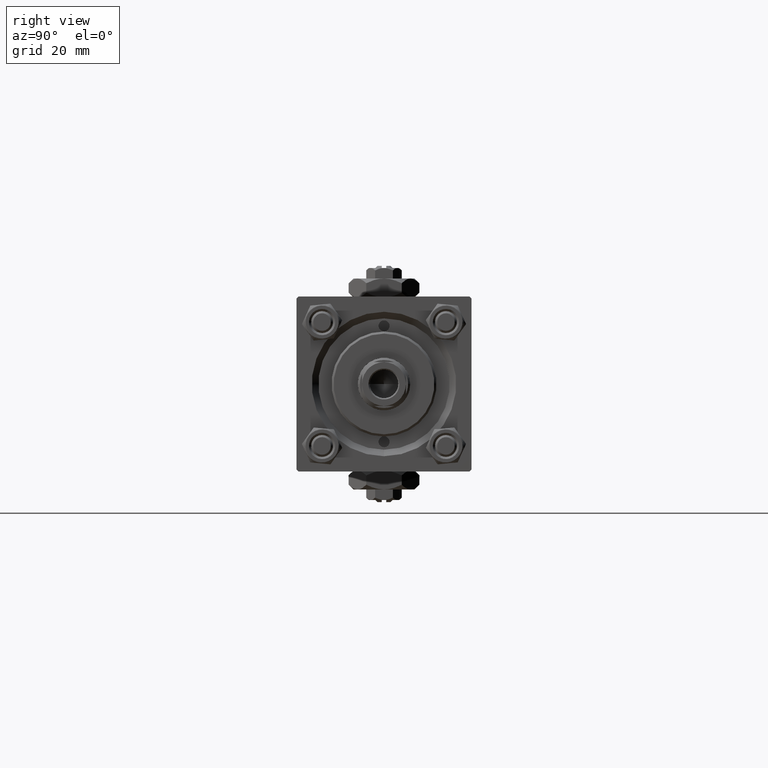
[diagram: clean part render]
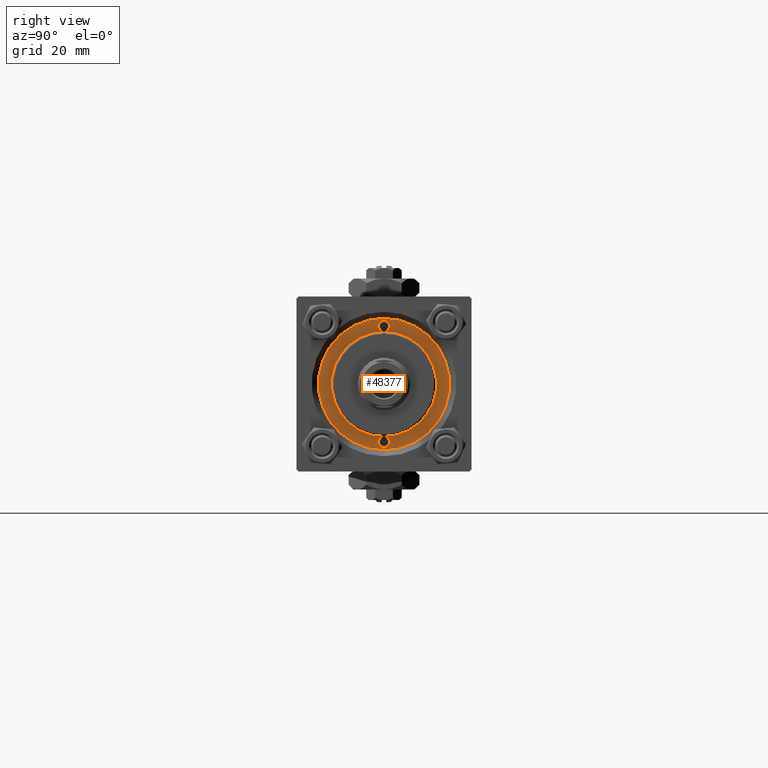
[diagram: same view with one face highlighted and labeled with its STEP entity id]
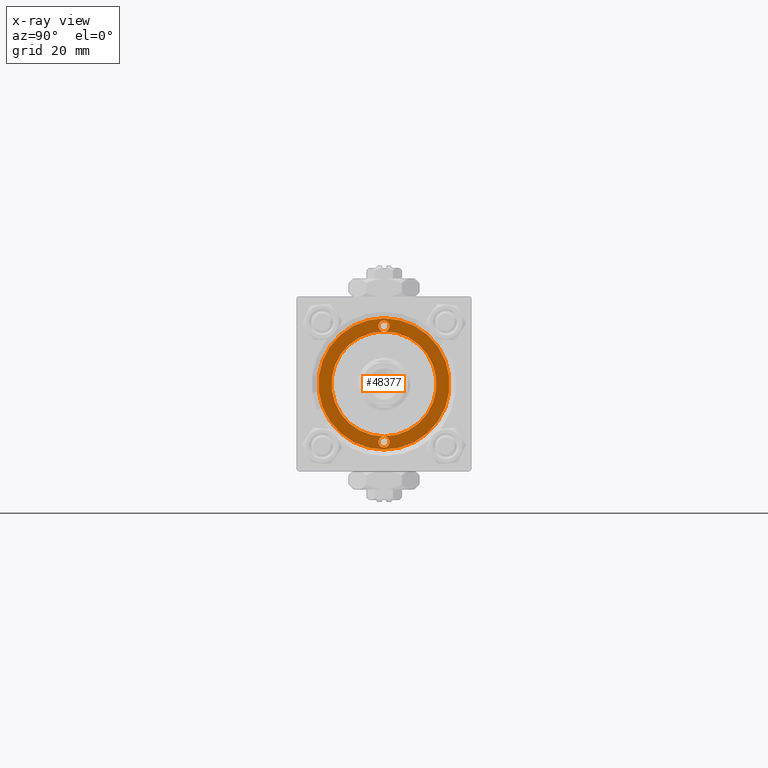
[diagram: x-ray of the same camera — body ghosted, the highlighted face saturated]
A machine part, right view. The second image highlights one B-rep face of the part: STEP entity #48377.
The next image is the same camera in x-ray: the body ghosted, the highlighted face saturated — about 0% of this face is hidden behind the body in this view.
In plain terms, the highlighted planar face has unit normal (1, 0, -0).
Its self-contained STEP definition (entity closure, byte-faithful):
#761 = CARTESIAN_POINT ( 'NONE',  ( 0.000000000000000000, 0.000000000000000000, 28.69999999999999929 ) ) ;
#1569 = ORIENTED_EDGE ( 'NONE', *, *, #18718, .F. ) ;
#3437 = VERTEX_POINT ( 'NONE', #51335 ) ;
#5956 = CARTESIAN_POINT ( 'NONE',  ( -13.25000000000000178, 0.000000000000000000, 28.69999999999999929 ) ) ;
#6027 = VERTEX_POINT ( 'NONE', #37510 ) ;
#6113 = CIRCLE ( 'NONE', #26262, 1.249999999999997558 ) ;
#6301 = DIRECTION ( 'NONE',  ( 0.000000000000000000, 0.000000000000000000, 1.000000000000000000 ) ) ;
#12339 = DIRECTION ( 'NONE',  ( 0.000000000000000000, 0.000000000000000000, 1.000000000000000000 ) ) ;
#13992 = DIRECTION ( 'NONE',  ( 1.000000000000000000, 0.000000000000000000, 0.000000000000000000 ) ) ;
#14981 = FACE_OUTER_BOUND ( 'NONE', #46821, .T. ) ;
#16560 = CIRCLE ( 'NONE', #19061, 1.249999999999999334 ) ;
#16794 = VERTEX_POINT ( 'NONE', #49784 ) ;
#16809 = DIRECTION ( 'NONE',  ( 0.000000000000000000, 0.000000000000000000, 1.000000000000000000 ) ) ;
#17015 = EDGE_CURVE ( 'NONE', #16794, #48087, #18230, .T. ) ;
#17389 = AXIS2_PLACEMENT_3D ( 'NONE', #28612, #12339, #39894 ) ;
#17925 = CARTESIAN_POINT ( 'NONE',  ( -13.25000000000000178, 0.000000000000000000, 28.69999999999999929 ) ) ;
#18230 = CIRCLE ( 'NONE', #21574, 15.00000000000000000 ) ;
#18718 = EDGE_CURVE ( 'NONE', #40108, #39659, #27726, .T. ) ;
#19061 = AXIS2_PLACEMENT_3D ( 'NONE', #43825, #24659, #32281 ) ;
#21143 = CARTESIAN_POINT ( 'NONE',  ( 0.000000000000000000, 0.000000000000000000, 28.69999999999999929 ) ) ;
#21290 = ORIENTED_EDGE ( 'NONE', *, *, #24127, .F. ) ;
#21439 = AXIS2_PLACEMENT_3D ( 'NONE', #761, #16809, #48833 ) ;
#21574 = AXIS2_PLACEMENT_3D ( 'NONE', #30220, #6301, #30734 ) ;
#24127 = EDGE_CURVE ( 'NONE', #39659, #6027, #25410, .T. ) ;
#24659 = DIRECTION ( 'NONE',  ( 0.000000000000000000, 0.000000000000000000, 1.000000000000000000 ) ) ;
#25410 = CIRCLE ( 'NONE', #50529, 1.249999999999999334 ) ;
#25603 = EDGE_CURVE ( 'NONE', #3437, #40108, #6113, .T. ) ;
#25652 = CIRCLE ( 'NONE', #42378, 1.249999999999997558 ) ;
#25903 = ORIENTED_EDGE ( 'NONE', *, *, #25603, .F. ) ;
#26051 = AXIS2_PLACEMENT_3D ( 'NONE', #21143, #48188, #28249 ) ;
#26262 = AXIS2_PLACEMENT_3D ( 'NONE', #5956, #37744, #37997 ) ;
#26592 = CIRCLE ( 'NONE', #17389, 15.00000000000000000 ) ;
#27585 = DIRECTION ( 'NONE',  ( 1.000000000000000000, 0.000000000000000000, -0.000000000000000000 ) ) ;
#27726 = CIRCLE ( 'NONE', #26051, 12.00000000000000178 ) ;
#28249 = DIRECTION ( 'NONE',  ( 1.000000000000000000, 0.000000000000000000, 0.000000000000000000 ) ) ;
#28372 = DIRECTION ( 'NONE',  ( 0.000000000000000000, 0.000000000000000000, 1.000000000000000000 ) ) ;
#28612 = CARTESIAN_POINT ( 'NONE',  ( 0.000000000000000000, 0.000000000000000000, 28.69999999999999929 ) ) ;
#30220 = CARTESIAN_POINT ( 'NONE',  ( 0.000000000000000000, 0.000000000000000000, 28.69999999999999929 ) ) ;
#30734 = DIRECTION ( 'NONE',  ( 1.000000000000000000, 0.000000000000000000, 0.000000000000000000 ) ) ;
#30833 = CARTESIAN_POINT ( 'NONE',  ( 13.25000000000000000, 0.000000000000000000, 28.69999999999999929 ) ) ;
#31202 = EDGE_CURVE ( 'NONE', #39659, #40108, #49098, .T. ) ;
#31530 = AXIS2_PLACEMENT_3D ( 'NONE', #48580, #28372, #27585 ) ;
#31677 = ORIENTED_EDGE ( 'NONE', *, *, #39018, .T. ) ;
#32281 = DIRECTION ( 'NONE',  ( 1.000000000000000000, 0.000000000000000000, 0.000000000000000000 ) ) ;
#32370 = CARTESIAN_POINT ( 'NONE',  ( 12.00000000000000178, 0.000000000000000000, 28.69999999999999929 ) ) ;
#33926 = DIRECTION ( 'NONE',  ( 0.000000000000000000, 0.000000000000000000, 1.000000000000000000 ) ) ;
#33989 = DIRECTION ( 'NONE',  ( 1.000000000000000000, 0.000000000000000000, 0.000000000000000000 ) ) ;
#37510 = CARTESIAN_POINT ( 'NONE',  ( 14.49999999999999822, 0.000000000000000000, 28.69999999999999929 ) ) ;
#37744 = DIRECTION ( 'NONE',  ( 0.000000000000000000, 0.000000000000000000, 1.000000000000000000 ) ) ;
#37997 = DIRECTION ( 'NONE',  ( 1.000000000000000000, 0.000000000000000000, 0.000000000000000000 ) ) ;
#38111 = EDGE_CURVE ( 'NONE', #6027, #39659, #16560, .T. ) ;
#39018 = EDGE_CURVE ( 'NONE', #48087, #16794, #26592, .T. ) ;
#39493 = ORIENTED_EDGE ( 'NONE', *, *, #38111, .F. ) ;
#39659 = VERTEX_POINT ( 'NONE', #32370 ) ;
#39894 = DIRECTION ( 'NONE',  ( 1.000000000000000000, 0.000000000000000000, 0.000000000000000000 ) ) ;
#40108 = VERTEX_POINT ( 'NONE', #46945 ) ;
#41230 = ORIENTED_EDGE ( 'NONE', *, *, #17015, .T. ) ;
#42378 = AXIS2_PLACEMENT_3D ( 'NONE', #17925, #33926, #13992 ) ;
#43825 = CARTESIAN_POINT ( 'NONE',  ( 13.25000000000000000, 0.000000000000000000, 28.69999999999999929 ) ) ;
#46821 = EDGE_LOOP ( 'NONE', ( #41230, #31677 ) ) ;
#46841 = DIRECTION ( 'NONE',  ( 0.000000000000000000, 0.000000000000000000, 1.000000000000000000 ) ) ;
#46933 = EDGE_CURVE ( 'NONE', #40108, #3437, #25652, .T. ) ;
#46945 = CARTESIAN_POINT ( 'NONE',  ( -12.00000000000000178, 0.000000000000000000, 28.69999999999999929 ) ) ;
#47007 = PLANE ( 'NONE',  #31530 ) ;
#48007 = ORIENTED_EDGE ( 'NONE', *, *, #46933, .F. ) ;
#48087 = VERTEX_POINT ( 'NONE', #51582 ) ;
#48188 = DIRECTION ( 'NONE',  ( 0.000000000000000000, 0.000000000000000000, 1.000000000000000000 ) ) ;
#48377 = ADVANCED_FACE ( 'NONE', ( #50944, #14981 ), #47007, .T. ) ;
#48580 = CARTESIAN_POINT ( 'NONE',  ( 0.000000000000000000, 0.000000000000000000, 28.69999999999999929 ) ) ;
#48833 = DIRECTION ( 'NONE',  ( 1.000000000000000000, 0.000000000000000000, 0.000000000000000000 ) ) ;
#49098 = CIRCLE ( 'NONE', #21439, 12.00000000000000178 ) ;
#49784 = CARTESIAN_POINT ( 'NONE',  ( -15.00000000000000000, 0.000000000000000000, 28.69999999999999929 ) ) ;
#50529 = AXIS2_PLACEMENT_3D ( 'NONE', #30833, #46841, #33989 ) ;
#50796 = ORIENTED_EDGE ( 'NONE', *, *, #31202, .F. ) ;
#50944 = FACE_BOUND ( 'NONE', #51492, .T. ) ;
#51335 = CARTESIAN_POINT ( 'NONE',  ( -14.49999999999999822, 1.530808498934190585E-16, 28.69999999999999929 ) ) ;
#51492 = EDGE_LOOP ( 'NONE', ( #1569, #25903, #48007, #50796, #39493, #21290 ) ) ;
#51582 = CARTESIAN_POINT ( 'NONE',  ( 15.00000000000000000, 1.836970198721029589E-15, 28.69999999999999929 ) ) ;